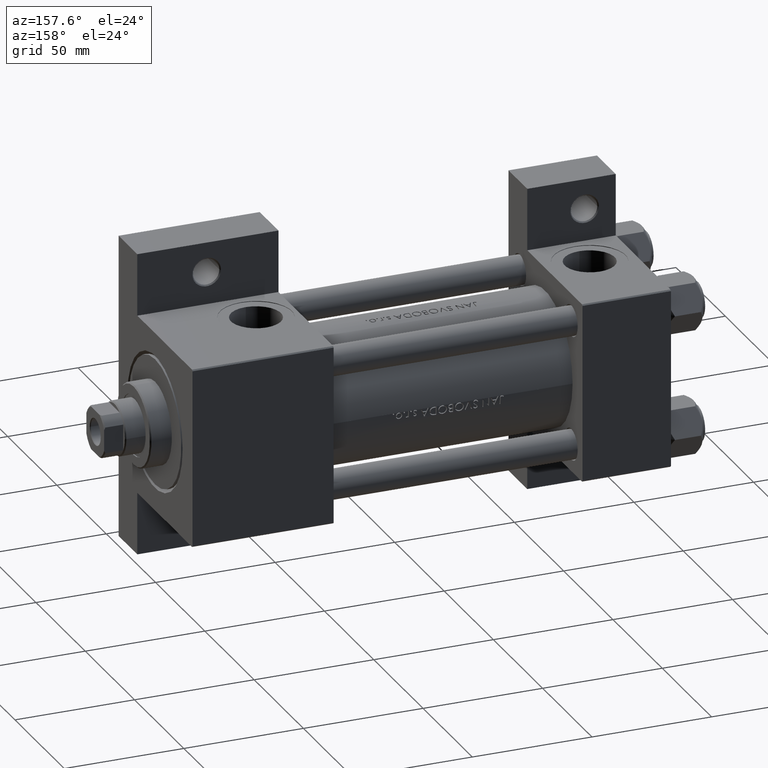
[diagram: clean part render]
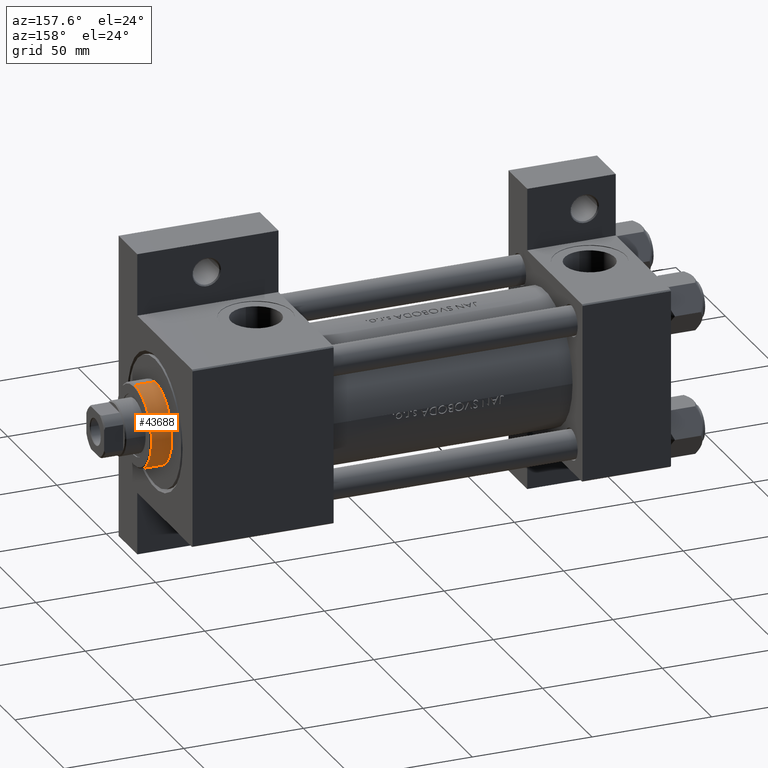
[diagram: same view with one face highlighted and labeled with its STEP entity id]
A machine part, auxiliary view. The second image highlights one B-rep face of the part: STEP entity #43688.
In plain terms, the highlighted cylindrical surface (partial cylindrical patch) has radius 17 mm, axis along (-1, -0, 0).
Its self-contained STEP definition (entity closure, byte-faithful):
#1263 = ORIENTED_EDGE ( 'NONE', *, *, #47835, .T. ) ;
#1302 = CARTESIAN_POINT ( 'NONE',  ( 0.000000000000000000, 0.000000000000000000, 37.69999999999999574 ) ) ;
#2301 = DIRECTION ( 'NONE',  ( -0.000000000000000000, -0.000000000000000000, -1.000000000000000000 ) ) ;
#2982 = ORIENTED_EDGE ( 'NONE', *, *, #25090, .F. ) ;
#4041 = VECTOR ( 'NONE', #11942, 1000.000000000000000 ) ;
#4754 = VERTEX_POINT ( 'NONE', #22784 ) ;
#5814 = ORIENTED_EDGE ( 'NONE', *, *, #24343, .T. ) ;
#5846 = CARTESIAN_POINT ( 'NONE',  ( 0.000000000000000000, 0.000000000000000000, 28.69999999999999929 ) ) ;
#8632 = DIRECTION ( 'NONE',  ( 0.000000000000000000, 0.000000000000000000, -1.000000000000000000 ) ) ;
#10072 = AXIS2_PLACEMENT_3D ( 'NONE', #1302, #2301, #46622 ) ;
#11942 = DIRECTION ( 'NONE',  ( -0.000000000000000000, -0.000000000000000000, -1.000000000000000000 ) ) ;
#12764 = CYLINDRICAL_SURFACE ( 'NONE', #10072, 17.00000000000000000 ) ;
#13046 = VERTEX_POINT ( 'NONE', #42103 ) ;
#13363 = AXIS2_PLACEMENT_3D ( 'NONE', #20809, #8632, #23810 ) ;
#13798 = DIRECTION ( 'NONE',  ( 0.000000000000000000, 0.000000000000000000, 1.000000000000000000 ) ) ;
#16723 = VECTOR ( 'NONE', #23356, 1000.000000000000000 ) ;
#17854 = CARTESIAN_POINT ( 'NONE',  ( 17.00000000000000000, 2.081899558550500280E-15, 28.69999999999999929 ) ) ;
#19607 = CARTESIAN_POINT ( 'NONE',  ( 17.00000000000000000, 2.081899558550500280E-15, 37.19999999999999574 ) ) ;
#20485 = FACE_OUTER_BOUND ( 'NONE', #40010, .T. ) ;
#20809 = CARTESIAN_POINT ( 'NONE',  ( 0.000000000000000000, 0.000000000000000000, 37.19999999999999574 ) ) ;
#21067 = CIRCLE ( 'NONE', #48880, 17.00000000000000000 ) ;
#21094 = ORIENTED_EDGE ( 'NONE', *, *, #26202, .T. ) ;
#22784 = CARTESIAN_POINT ( 'NONE',  ( -17.00000000000000000, 0.000000000000000000, 28.69999999999999929 ) ) ;
#23356 = DIRECTION ( 'NONE',  ( -0.000000000000000000, -0.000000000000000000, -1.000000000000000000 ) ) ;
#23810 = DIRECTION ( 'NONE',  ( 1.000000000000000000, 0.000000000000000000, 0.000000000000000000 ) ) ;
#24343 = EDGE_CURVE ( 'NONE', #42181, #4754, #21067, .T. ) ;
#25090 = EDGE_CURVE ( 'NONE', #13046, #4754, #29349, .T. ) ;
#25612 = CARTESIAN_POINT ( 'NONE',  ( -17.00000000000000000, 0.000000000000000000, 37.69999999999999574 ) ) ;
#26202 = EDGE_CURVE ( 'NONE', #32547, #42181, #31849, .T. ) ;
#29349 = LINE ( 'NONE', #25612, #16723 ) ;
#30076 = CIRCLE ( 'NONE', #13363, 17.00000000000000000 ) ;
#31849 = LINE ( 'NONE', #35099, #4041 ) ;
#32547 = VERTEX_POINT ( 'NONE', #19607 ) ;
#35099 = CARTESIAN_POINT ( 'NONE',  ( 17.00000000000000000, 2.081899558550500280E-15, 37.69999999999999574 ) ) ;
#40010 = EDGE_LOOP ( 'NONE', ( #1263, #21094, #5814, #2982 ) ) ;
#42103 = CARTESIAN_POINT ( 'NONE',  ( -17.00000000000000000, 0.000000000000000000, 37.19999999999999574 ) ) ;
#42181 = VERTEX_POINT ( 'NONE', #17854 ) ;
#43688 = ADVANCED_FACE ( 'NONE', ( #20485 ), #12764, .T. ) ;
#46622 = DIRECTION ( 'NONE',  ( -1.000000000000000000, 0.000000000000000000, 0.000000000000000000 ) ) ;
#47835 = EDGE_CURVE ( 'NONE', #13046, #32547, #30076, .T. ) ;
#47889 = DIRECTION ( 'NONE',  ( 1.000000000000000000, 0.000000000000000000, 0.000000000000000000 ) ) ;
#48880 = AXIS2_PLACEMENT_3D ( 'NONE', #5846, #13798, #47889 ) ;